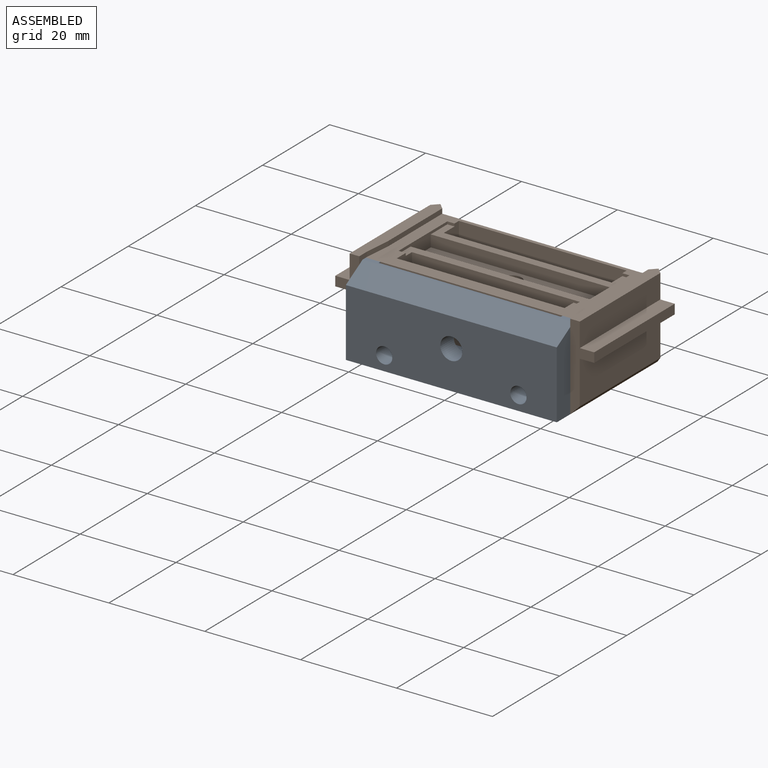
[diagram: assembled view]
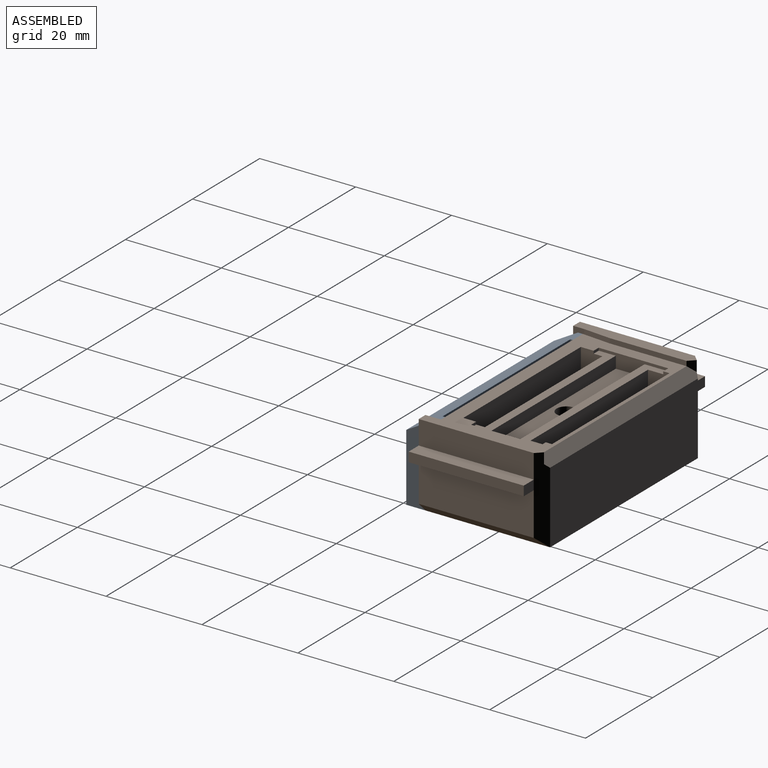
[diagram: assembled view, second angle]
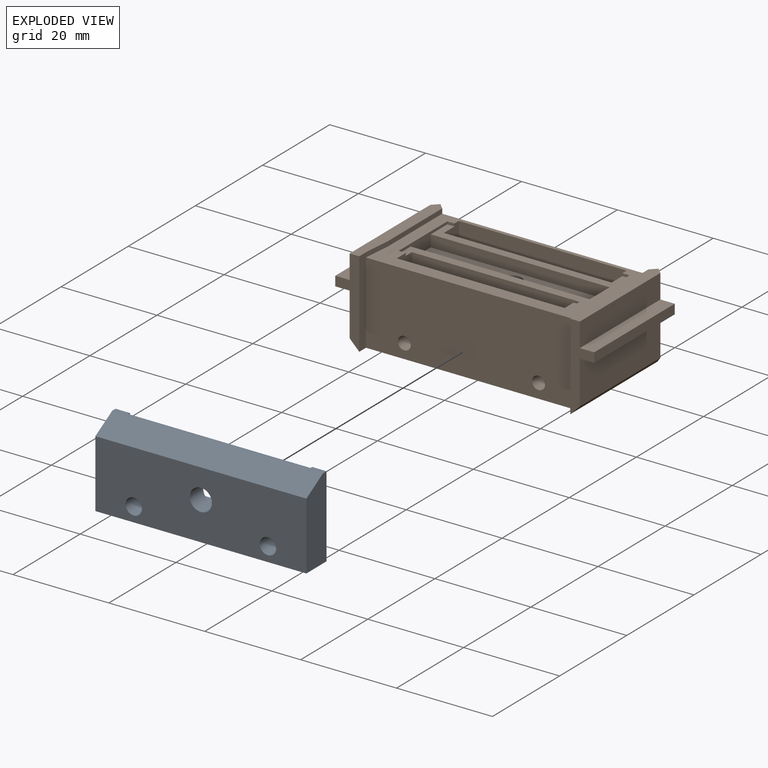
[diagram: exploded view]
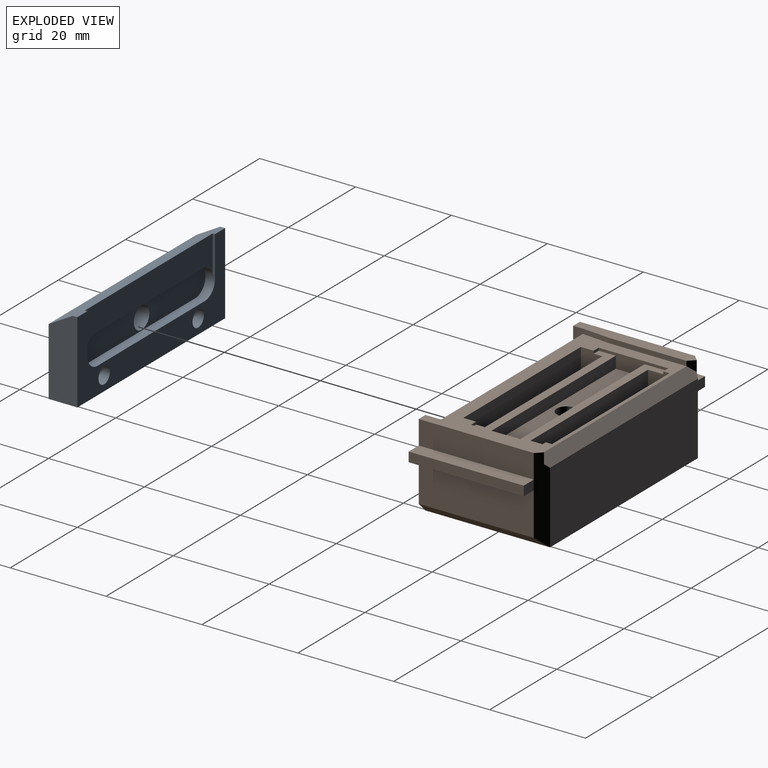
[diagram: exploded view, second angle]
ASSEMBLY  parts=2 mates=4
PART A: 18 faces, bbox 44x6x17 mm
  f0: cylinder r=2.3mm len=4.6mm, axis (0,1,0), area 57.8mm2, adj f5,f17
  f1: plane 44x17mm, normal (0,-1,0), area 298.6mm2, adj f2,f3,f6,f7,f8,f9,f10,f11
  f2: plane 44x6mm, normal (0,0,1), area 264mm2, adj f1,f5,f6,f7
  f3: plane 44x1mm, normal (0,0,-1), area 25mm2, adj f1,f4,f6,f7,f10,f11,f12
  f4: plane 44x5mm, normal (0,0.5,-0.87), area 254mm2, adj f3,f5,f6,f7
  f5: plane 44x14.11mm, normal (0,1,0), area 586.2mm2, adj f0,f2,f4,f6,f7,f8,f9
  f6: plane 17x6mm, normal (1,0,0), area 94.8mm2, adj f1,f2,f3,f4,f5
  f7: plane 17x6mm, normal (-1,0,0), area 94.8mm2, adj f1,f2,f3,f4,f5
  f8: cylinder r=1.7mm len=6mm, axis (0,1,0), area 64.1mm2, adj f1,f5
  f9: cylinder r=1.7mm len=6mm, axis (0,1,0), area 64.1mm2, adj f1,f5
  f10: plane 8.45x0.5mm, normal (1,0,0), area 4.2mm2, adj f1,f3,f12,f13
  f11: plane 8.45x0.5mm, normal (-1,0,0), area 4.2mm2, adj f1,f3,f12,f15
  f12: plane 38x8.45mm, normal (0,-1,0), area 211mm2, adj f3,f10,f11,f13,f14,f15
  f13: cylinder r=3mm len=6mm, axis (0,-1,0), area 16.5mm2, adj f1,f10,f12,f14,f16,f17
  f14: plane 32x1.5mm, normal (0,0,1), area 48mm2, adj f12,f13,f15,f17
  f15: cylinder r=3mm len=6mm, axis (0,-1,0), area 16.5mm2, adj f1,f11,f12,f14,f16,f17
  f16: plane 32x2mm, normal (0,0,-1), area 64mm2, adj f1,f13,f15,f17
  f17: plane 38x6mm, normal (0,-1,0), area 203.7mm2, adj f0,f13,f14,f15,f16
PART B: 67 faces, bbox 54x26x18 mm
  f0: plane 24x5mm, normal (1,0,0), area 120mm2, adj f3,f38,f46,f63
  f1: plane 24x9mm, normal (-1,0,0), area 216mm2, adj f39,f41,f43,f61
  f2: plane 25.25x2.5mm, normal (0,0,1), area 59mm2, adj f11,f15,f39,f40,f42,f43,f57
  f3: plane 25.25x2.5mm, normal (0,0,1), area 59mm2, adj f0,f13,f14,f38,f46,f47,f58
  f4: plane 44x24mm, normal (0,0,-1), area 1038.8mm2, adj f10,f12,f41,f44,f54,f55,f56
  f5: plane 44x22mm, normal (0,0,1), area 258.1mm2, adj f6,f7,f11,f12,f13,f14,f15,f16
  f6: plane 1.5x0.55mm, normal (0,1,0), area 0.8mm2, adj f5,f9,f18,f23
  f7: plane 1.5x0.55mm, normal (0,-1,0), area 0.8mm2, adj f5,f8,f18,f29
  f8: plane 38x4.95mm, normal (0,0,1), area 76.1mm2, adj f7,f16,f18,f19,f21,f28,f29,f31
  f9: plane 38x3.58mm, normal (0,0,1), area 72mm2, adj f6,f16,f17,f18,f20,f23,f24,f25
  f10: plane 44x15mm, normal (0,1,0), area 660mm2, adj f4,f43,f45,f46
  f11: plane 18x2.29mm, normal (1,0,0), area 36.3mm2, adj f2,f5,f12,f39,f41,f57
  f12: plane 44x17mm, normal (0,-1,0), area 736.5mm2, adj f4,f5,f11,f13,f33,f35
  f13: plane 18x2.29mm, normal (-1,0,0), area 36.3mm2, adj f3,f5,f12,f38,f44,f58
  f14: plane 16x1mm, normal (-1,0,0), area 16mm2, adj f3,f5,f47,f58
  f15: plane 16x1mm, normal (1,0,0), area 16mm2, adj f2,f5,f42,f57
  f16: plane 14.52x3mm, normal (1,0,0), area 22.7mm2, adj f5,f8,f9,f17,f19,f20,f21,f22
  f17: plane 1.5x0.55mm, normal (0,1,0), area 0.8mm2, adj f5,f9,f16,f25
  f18: plane 14.52x3mm, normal (-1,0,0), area 22.7mm2, adj f5,f6,f7,f8,f9,f20,f21,f22
  f19: plane 1.5x0.55mm, normal (0,-1,0), area 0.8mm2, adj f5,f8,f16,f31
  f20: plane 38x2.45mm, normal (0,1,0), area 93.1mm2, adj f9,f16,f18,f22
  f21: plane 38x2.45mm, normal (0,-1,0), area 93.1mm2, adj f8,f16,f18,f22
  f22: plane 38x6mm, normal (0,0,1), area 214.8mm2, adj f16,f18,f20,f21,f49
  f23: plane 5x4.5mm, normal (-1,0,0), area 21.5mm2, adj f5,f6,f9,f24,f26,f27
  f24: plane 35x4.45mm, normal (0,-1,0), area 155.8mm2, adj f9,f23,f25,f27
  f25: plane 5x4.5mm, normal (1,0,0), area 21.5mm2, adj f5,f9,f17,f24,f26,f27
  f26: plane 35x5mm, normal (0,1,0), area 175mm2, adj f5,f23,f25,f27
  f27: plane 35x4.5mm, normal (0,0,1), area 144.3mm2, adj f23,f24,f25,f26,f51
  f28: plane 35x4.45mm, normal (0,1,0), area 155.8mm2, adj f8,f29,f31,f32
  f29: plane 5x4.5mm, normal (-1,0,0), area 20.7mm2, adj f5,f7,f8,f28,f30,f32
  f30: plane 35x5mm, normal (0,-1,0), area 175mm2, adj f5,f29,f31,f32
  f31: plane 5x4.5mm, normal (1,0,0), area 20.7mm2, adj f5,f8,f19,f28,f30,f32
  f32: plane 35x4.5mm, normal (0,0,1), area 144.3mm2, adj f28,f29,f30,f31,f53
  f33: cylinder r=1.35mm len=8mm, axis (0,-1,0), area 67.9mm2, adj f12,f34
  f34: plane 2.7x2.7mm, normal (0,-1,0), area 5.7mm2, adj f33
  f35: cylinder r=1.35mm len=8mm, axis (0,-1,0), area 67.9mm2, adj f12,f36
  f36: plane 2.7x2.7mm, normal (0,-1,0), area 5.7mm2, adj f35
  f37: plane 24x9mm, normal (1,0,0), area 216mm2, adj f38,f44,f46,f64
  f38: plane 18x5mm, normal (0,-1,0), area 40mm2, adj f0,f3,f13,f37,f44,f63,f64,f66
  f39: plane 18x5mm, normal (0,-1,0), area 40mm2, adj f1,f2,f11,f40,f41,f59,f61,f62
  f40: plane 24x5mm, normal (-1,0,0), area 120mm2, adj f2,f39,f43,f59
  f41: plane 26x2mm, normal (-0.71,0,-0.71), area 70.7mm2, adj f1,f4,f11,f39,f43
  f42: plane 2.25x1.25mm, normal (0.71,0.71,0), area 2.9mm2, adj f2,f15,f43,f45
  f43: plane 18x2mm, normal (-0.71,0.71,0), area 45.3mm2, adj f1,f2,f10,f40,f41,f42,f45,f60
  f44: plane 26x2mm, normal (0.71,0,-0.71), area 70.7mm2, adj f4,f13,f37,f38,f46
  f45: plane 45.5x2mm, normal (0,0.71,0.71), area 125.7mm2, adj f5,f10,f42,f43,f46,f47
  f46: plane 18x2mm, normal (0.71,0.71,0), area 45.3mm2, adj f0,f3,f10,f37,f44,f45,f47,f65
  f47: plane 2.25x1.25mm, normal (-0.71,0.71,0), area 2.9mm2, adj f3,f14,f45,f46
  f48: plane 4.1x4.1mm, normal (0,0,1), area 7.5mm2, adj f49,f56
  f49: cylinder r=2.05mm len=10mm, axis (0,0,-1), area 128.8mm2, adj f22,f48
  f50: plane 4.1x4.1mm, normal (0,0,1), area 7.5mm2, adj f51,f55
  f51: cylinder r=2.05mm len=8mm, axis (0,0,-1), area 103mm2, adj f27,f50
  f52: plane 4.1x4.1mm, normal (0,0,1), area 7.5mm2, adj f53,f54
  f53: cylinder r=2.05mm len=8mm, axis (0,0,-1), area 103mm2, adj f32,f52
  f54: cylinder r=1.35mm len=4mm, axis (0,0,-1), area 33.9mm2, adj f4,f52
  f55: cylinder r=1.35mm len=4mm, axis (0,0,-1), area 33.9mm2, adj f4,f50
  f56: cylinder r=1.35mm len=4mm, axis (0,0,-1), area 33.9mm2, adj f4,f48
  f57: plane 5.72x1mm, normal (1,-0.09,0), area 5.7mm2, adj f2,f5,f11,f15
  f58: plane 5.72x1mm, normal (-1,-0.09,0), area 5.7mm2, adj f3,f5,f13,f14
  f59: plane 24x3mm, normal (0,0,1), area 72mm2, adj f39,f40,f60,f62
  f60: plane 3x2mm, normal (0,1,0), area 6mm2, adj f43,f59,f61,f62
  f61: plane 24x3mm, normal (0,0,-1), area 72mm2, adj f1,f39,f60,f62
  f62: plane 24x2mm, normal (-1,0,0), area 48mm2, adj f39,f59,f60,f61
  f63: plane 24x3mm, normal (0,0,1), area 72mm2, adj f0,f38,f65,f66
  f64: plane 24x3mm, normal (0,0,-1), area 72mm2, adj f37,f38,f65,f66
  f65: plane 3x2mm, normal (0,1,0), area 6mm2, adj f46,f63,f64,f66
  f66: plane 24x2mm, normal (1,0,0), area 48mm2, adj f38,f63,f64,f65
PLACE A rot(axis=(1,0,0),180deg) t=(-22,-12,0)mm
PLACE B at identity fixed
MATE planar A.f1 <-> B.f12  axis (0,1,0) through (0,-12,4.76)mm
MATE planar B.f13 <-> A.f6  axis (-1,0,0) through (22,-12.99,9.07)mm
MATE planar A.f2 <-> B.f4  axis (0,0,-1) through (0,-15,0)mm
MATE fastened A.f9 <-> B.f33  axis (0,1,0) through (14,-12,3)mm
